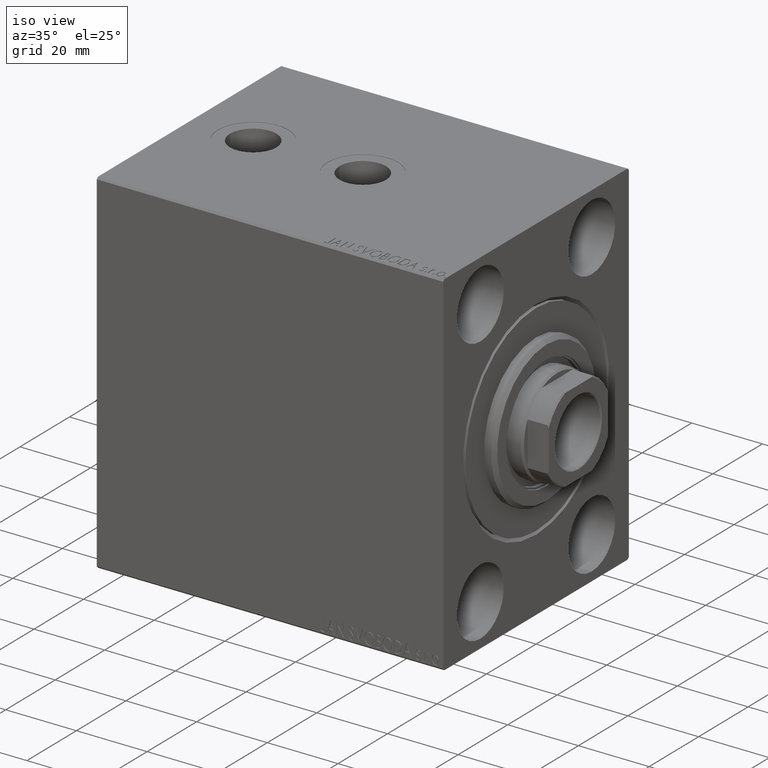
[diagram: clean part render]
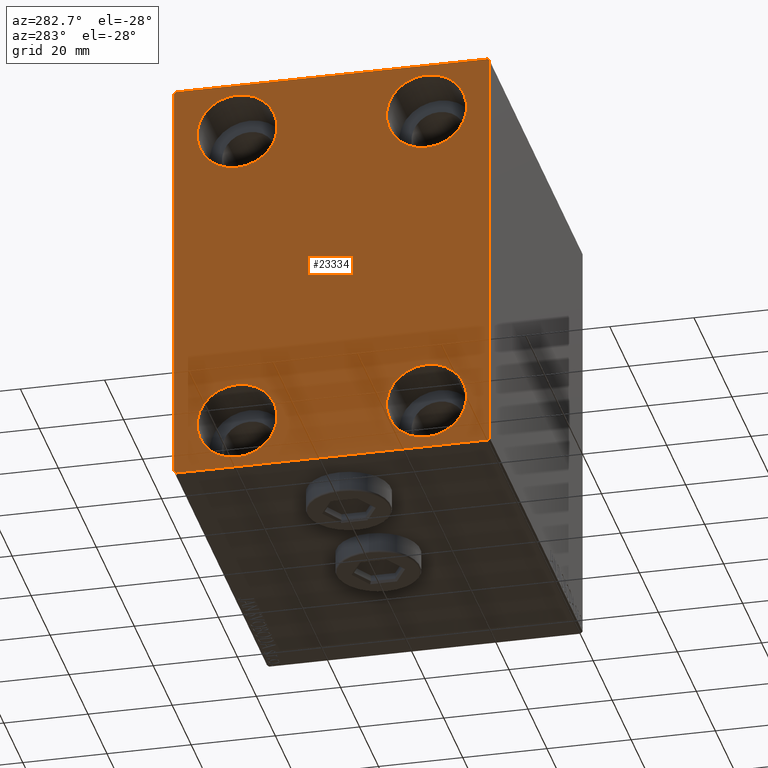
[diagram: tour spotlight — one face highlighted and labeled with its STEP entity id]
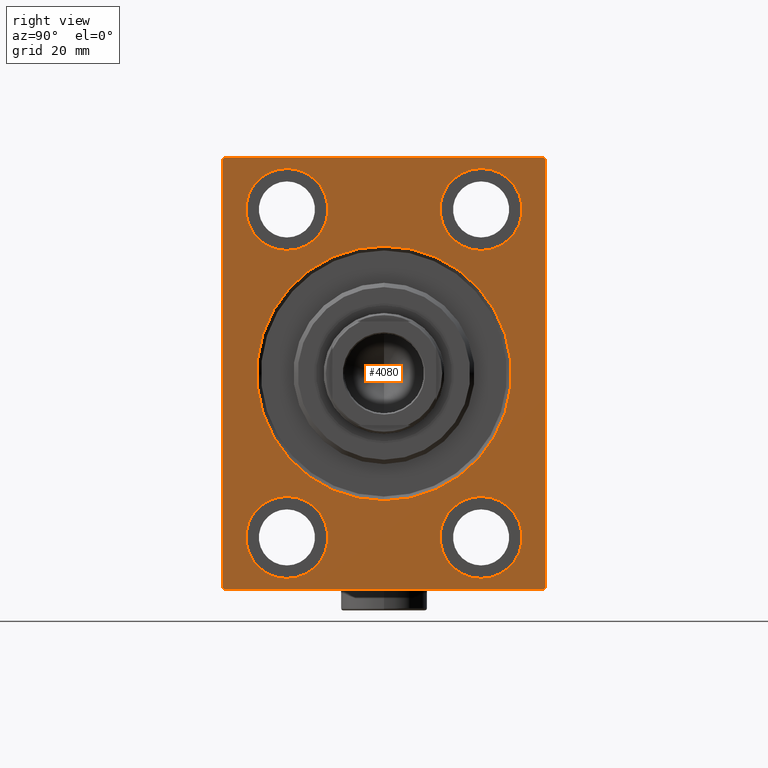
[diagram: tour spotlight — one face highlighted and labeled with its STEP entity id]
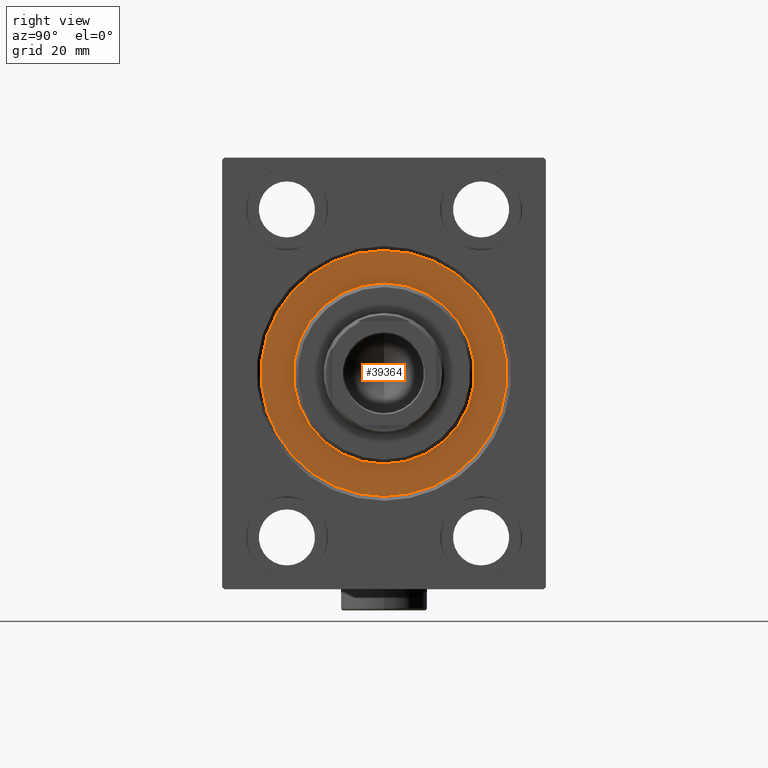
[diagram: tour spotlight — one face highlighted and labeled with its STEP entity id]
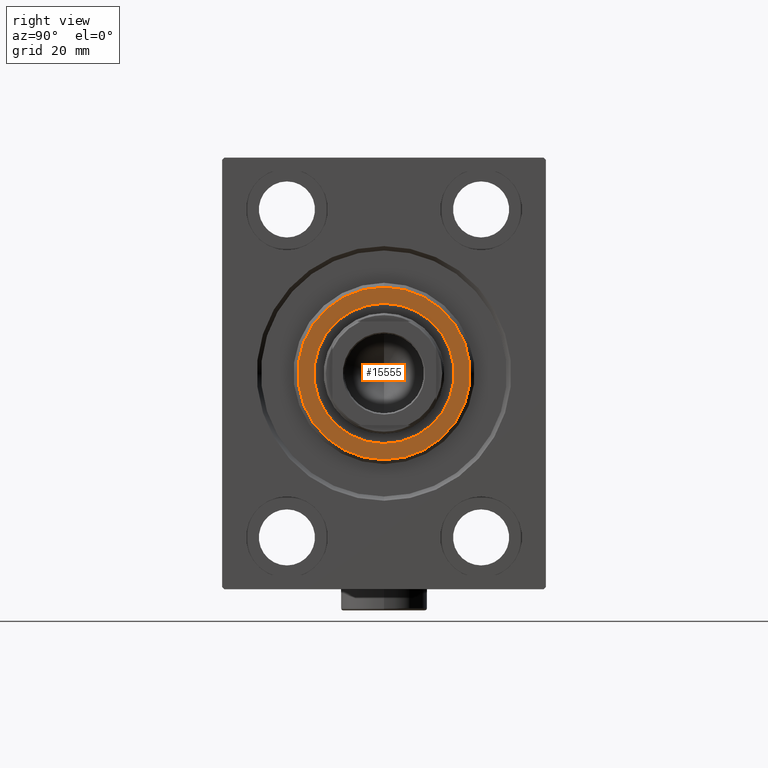
[diagram: tour spotlight — one face highlighted and labeled with its STEP entity id]
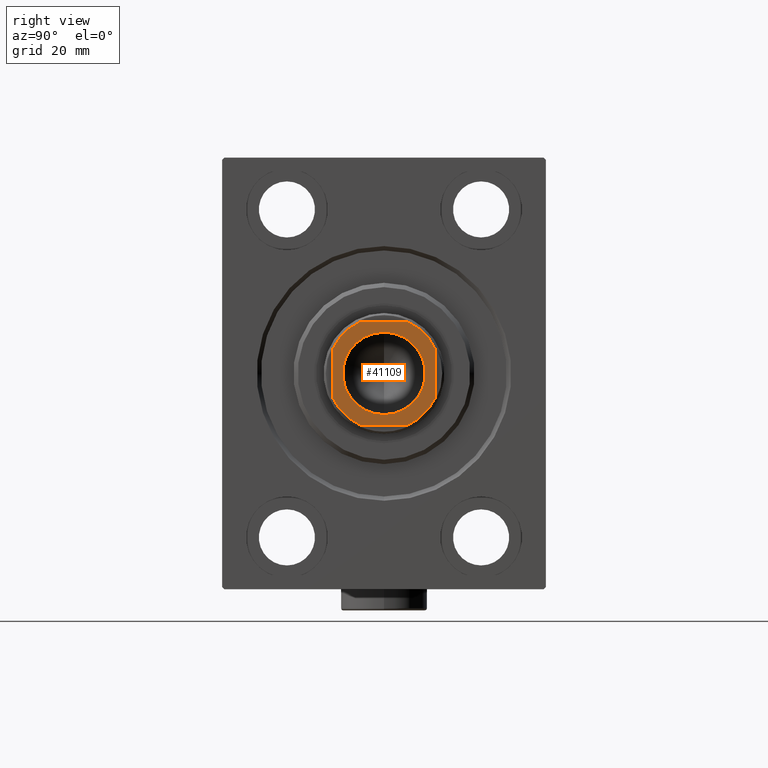
[diagram: tour spotlight — one face highlighted and labeled with its STEP entity id]
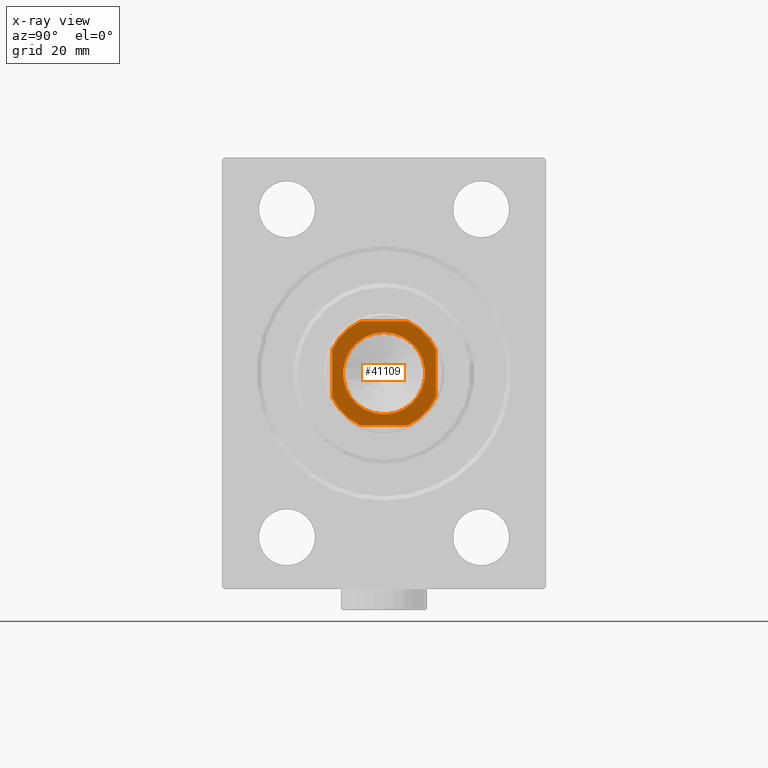
[diagram: x-ray of the same camera — body ghosted, this tour face saturated]
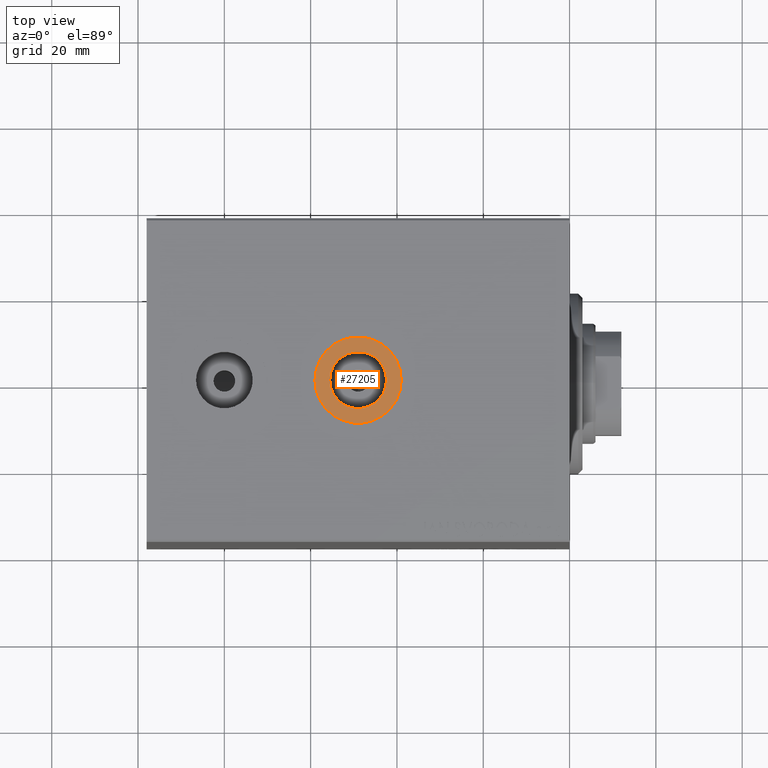
[diagram: tour spotlight — one face highlighted and labeled with its STEP entity id]
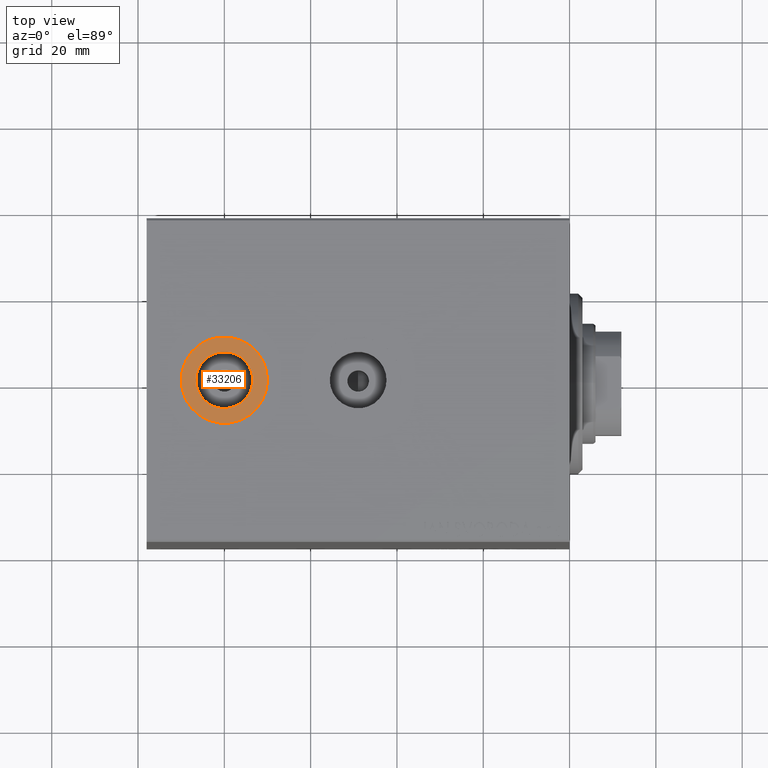
[diagram: tour spotlight — one face highlighted and labeled with its STEP entity id]
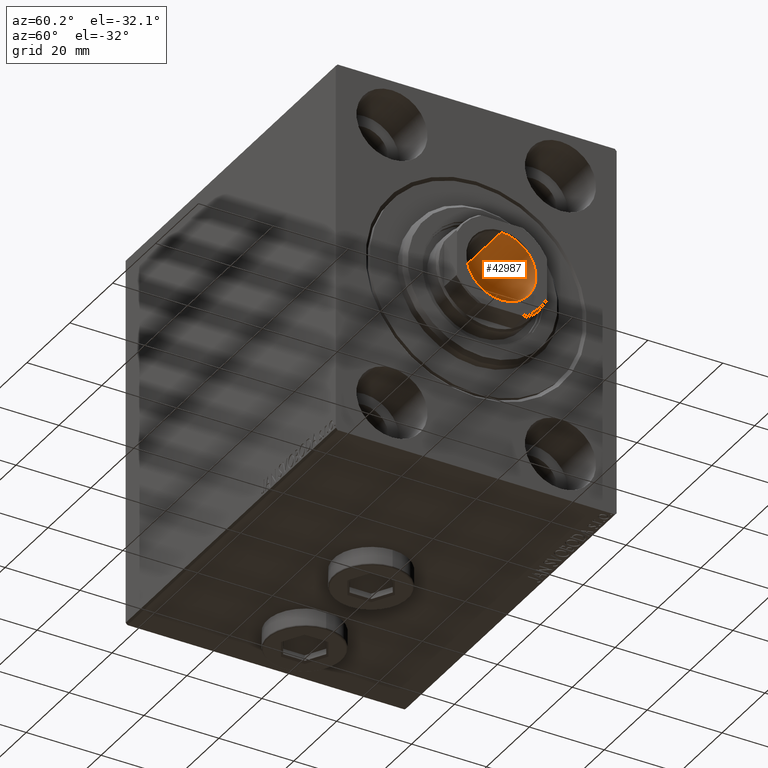
[diagram: tour spotlight — one face highlighted and labeled with its STEP entity id]
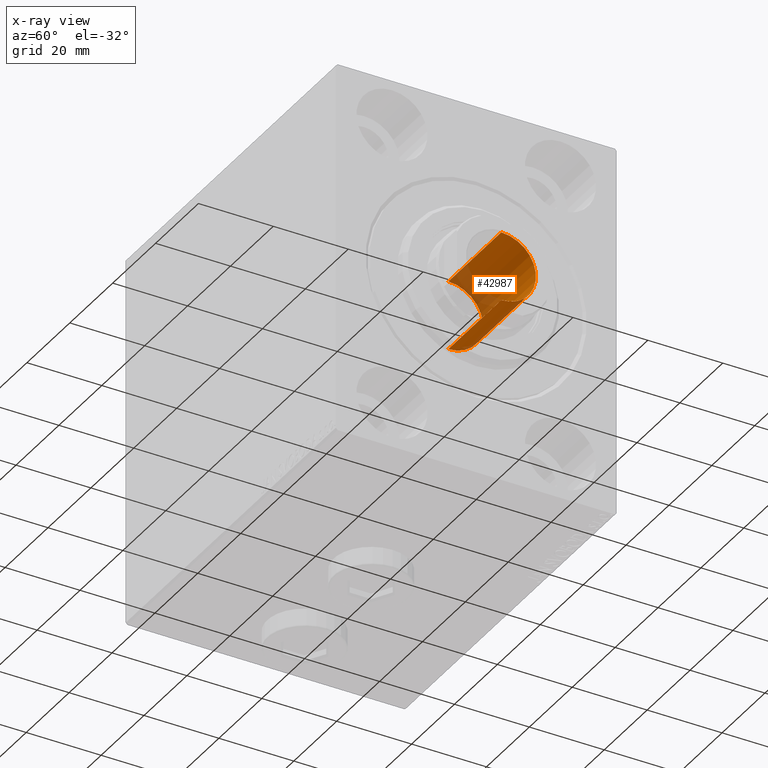
[diagram: x-ray of the same camera — body ghosted, this tour face saturated]
A machine part: a face-by-face anatomy tour. The part has 943 B-rep faces; the first image is the clean iso view, then the 8 largest visible faces are spotlighted one at a time (largest first), each with its STEP entity span.

Face 1 — auxiliary view, entity #23334. In plain terms, the highlighted planar face has unit normal (-1, 0, 0).
Definition (entity closure, byte-faithful):
#23 = ORIENTED_EDGE ( 'NONE', *, *, #11737, .T. ) ;
#111 = EDGE_CURVE ( 'NONE', #3927, #27236, #1813, .T. ) ;
#176 = AXIS2_PLACEMENT_3D ( 'NONE', #16613, #41042, #20323 ) ;
#365 = ORIENTED_EDGE ( 'NONE', *, *, #35045, .T. ) ;
#1111 = DIRECTION ( 'NONE',  ( 0.000000000000000000, 0.000000000000000000, 1.000000000000000000 ) ) ;
#1116 = LINE ( 'NONE', #36886, #4975 ) ;
#1206 = CARTESIAN_POINT ( 'NONE',  ( 98.00000000000000000, 22.49999999999999289, -47.50000000000000000 ) ) ;
#1475 = VERTEX_POINT ( 'NONE', #5110 ) ;
#1813 = CIRCLE ( 'NONE', #12933, 9.500000000000001776 ) ;
#2122 = EDGE_CURVE ( 'NONE', #7694, #11017, #43450, .T. ) ;
#2305 = AXIS2_PLACEMENT_3D ( 'NONE', #15028, #37102, #36872 ) ;
#2398 = CARTESIAN_POINT ( 'NONE',  ( 98.00000000000000000, 0.000000000000000000, 0.000000000000000000 ) ) ;
#3690 = CARTESIAN_POINT ( 'NONE',  ( 98.00000000000000000, -22.50000000000001421, -38.00000000000000000 ) ) ;
#3910 = ORIENTED_EDGE ( 'NONE', *, *, #18425, .T. ) ;
#3927 = VERTEX_POINT ( 'NONE', #9248 ) ;
#4975 = VECTOR ( 'NONE', #15274, 1000.000000000000000 ) ;
#5110 = CARTESIAN_POINT ( 'NONE',  ( 98.00000000000000000, 37.50000000000000000, -49.50000000000000000 ) ) ;
#5314 = CARTESIAN_POINT ( 'NONE',  ( 98.00000000000000000, 22.49999999999999645, 47.49999999999999289 ) ) ;
#5446 = CIRCLE ( 'NONE', #36590, 9.500000000000001776 ) ;
#6010 = LINE ( 'NONE', #20165, #19196 ) ;
#6328 = FACE_BOUND ( 'NONE', #20052, .T. ) ;
#6330 = CARTESIAN_POINT ( 'NONE',  ( 98.00000000000000000, 37.49999999999998579, 49.50000000000000000 ) ) ;
#7691 = CARTESIAN_POINT ( 'NONE',  ( 98.00000000000000000, -37.00000000000000000, 49.99999999999998579 ) ) ;
#7694 = VERTEX_POINT ( 'NONE', #41047 ) ;
#7763 = CARTESIAN_POINT ( 'NONE',  ( 98.00000000000000000, -37.50000000000000000, 49.99999999999998579 ) ) ;
#8669 = LINE ( 'NONE', #22844, #12385 ) ;
#9223 = DIRECTION ( 'NONE',  ( 0.000000000000000000, 0.000000000000000000, 1.000000000000000000 ) ) ;
#9248 = CARTESIAN_POINT ( 'NONE',  ( 98.00000000000000000, 22.49999999999999289, -28.49999999999999645 ) ) ;
#9619 = ORIENTED_EDGE ( 'NONE', *, *, #13072, .T. ) ;
#9662 = EDGE_LOOP ( 'NONE', ( #9973, #29183, #35482, #3910, #14470, #34183, #36710, #23 ) ) ;
#9812 = FACE_BOUND ( 'NONE', #38421, .T. ) ;
#9821 = DIRECTION ( 'NONE',  ( 0.000000000000000000, 0.000000000000000000, 1.000000000000000000 ) ) ;
#9973 = ORIENTED_EDGE ( 'NONE', *, *, #13253, .T. ) ;
#10040 = EDGE_CURVE ( 'NONE', #1475, #31886, #8669, .T. ) ;
#11017 = VERTEX_POINT ( 'NONE', #37647 ) ;
#11433 = CIRCLE ( 'NONE', #33700, 9.500000000000001776 ) ;
#11737 = EDGE_CURVE ( 'NONE', #31886, #38029, #23811, .T. ) ;
#12189 = VERTEX_POINT ( 'NONE', #35995 ) ;
#12247 = AXIS2_PLACEMENT_3D ( 'NONE', #44938, #41685, #9821 ) ;
#12384 = CARTESIAN_POINT ( 'NONE',  ( 98.00000000000000000, -43.49999999999999289, 43.49999999999999289 ) ) ;
#12385 = VECTOR ( 'NONE', #25873, 1000.000000000000000 ) ;
#12933 = AXIS2_PLACEMENT_3D ( 'NONE', #17109, #27580, #9223 ) ;
#13063 = DIRECTION ( 'NONE',  ( 1.000000000000000000, 0.000000000000000000, 0.000000000000000000 ) ) ;
#13066 = VECTOR ( 'NONE', #31022, 1000.000000000000114 ) ;
#13072 = EDGE_CURVE ( 'NONE', #38192, #40151, #23486, .T. ) ;
#13253 = EDGE_CURVE ( 'NONE', #38029, #14747, #1116, .T. ) ;
#13532 = FACE_OUTER_BOUND ( 'NONE', #9662, .T. ) ;
#13577 = CARTESIAN_POINT ( 'NONE',  ( 98.00000000000000000, -22.50000000000001421, -38.00000000000000000 ) ) ;
#13656 = DIRECTION ( 'NONE',  ( 0.000000000000000000, 0.000000000000000000, 1.000000000000000000 ) ) ;
#14470 = ORIENTED_EDGE ( 'NONE', *, *, #22963, .T. ) ;
#14747 = VERTEX_POINT ( 'NONE', #7691 ) ;
#15028 = CARTESIAN_POINT ( 'NONE',  ( 98.00000000000000000, 22.49999999999999645, 37.99999999999999289 ) ) ;
#15274 = DIRECTION ( 'NONE',  ( 0.000000000000000000, -1.000000000000000000, -3.700743415417189125E-16 ) ) ;
#16613 = CARTESIAN_POINT ( 'NONE',  ( 98.00000000000000000, 22.49999999999999645, 37.99999999999999289 ) ) ;
#16829 = DIRECTION ( 'NONE',  ( -1.000000000000000000, -0.000000000000000000, -0.000000000000000000 ) ) ;
#17057 = CARTESIAN_POINT ( 'NONE',  ( 98.00000000000000000, -37.50000000000000000, -50.00000000000001421 ) ) ;
#17109 = CARTESIAN_POINT ( 'NONE',  ( 98.00000000000000000, 22.49999999999999289, -38.00000000000000000 ) ) ;
#17609 = DIRECTION ( 'NONE',  ( 0.000000000000000000, 0.000000000000000000, 1.000000000000000000 ) ) ;
#18000 = LINE ( 'NONE', #7763, #25401 ) ;
#18425 = EDGE_CURVE ( 'NONE', #40843, #41514, #26440, .T. ) ;
#18506 = AXIS2_PLACEMENT_3D ( 'NONE', #37835, #31329, #13656 ) ;
#19196 = VECTOR ( 'NONE', #34354, 1000.000000000000114 ) ;
#20052 = EDGE_LOOP ( 'NONE', ( #31026, #43879 ) ) ;
#20165 = CARTESIAN_POINT ( 'NONE',  ( 98.00000000000000000, 43.50000000000000711, -43.50000000000000711 ) ) ;
#20299 = CARTESIAN_POINT ( 'NONE',  ( 98.00000000000000000, -22.50000000000001421, -47.50000000000000000 ) ) ;
#20323 = DIRECTION ( 'NONE',  ( 0.000000000000000000, 0.000000000000000000, 1.000000000000000000 ) ) ;
#20492 = EDGE_CURVE ( 'NONE', #11017, #7694, #34830, .T. ) ;
#20699 = ORIENTED_EDGE ( 'NONE', *, *, #32599, .T. ) ;
#21610 = CARTESIAN_POINT ( 'NONE',  ( 98.00000000000000000, 36.99999999999997158, 50.00000000000001421 ) ) ;
#22844 = CARTESIAN_POINT ( 'NONE',  ( 98.00000000000000000, 37.50000000000000000, -50.00000000000000000 ) ) ;
#22963 = EDGE_CURVE ( 'NONE', #41514, #39929, #38213, .T. ) ;
#23049 = VERTEX_POINT ( 'NONE', #32387 ) ;
#23334 = ADVANCED_FACE ( 'NONE', ( #9812, #6328, #30736, #31430, #13532 ), #38392, .T. ) ;
#23486 = CIRCLE ( 'NONE', #33156, 9.500000000000001776 ) ;
#23811 = LINE ( 'NONE', #37990, #13066 ) ;
#24675 = CIRCLE ( 'NONE', #176, 9.500000000000001776 ) ;
#24864 = EDGE_CURVE ( 'NONE', #40839, #23049, #42391, .T. ) ;
#25401 = VECTOR ( 'NONE', #42429, 1000.000000000000000 ) ;
#25689 = CARTESIAN_POINT ( 'NONE',  ( 98.00000000000000000, 37.00000000000000000, -50.00000000000000000 ) ) ;
#25873 = DIRECTION ( 'NONE',  ( 0.000000000000000000, -1.387778780781445429E-16, 1.000000000000000000 ) ) ;
#26057 = VECTOR ( 'NONE', #37023, 1000.000000000000114 ) ;
#26173 = EDGE_CURVE ( 'NONE', #14747, #12189, #40517, .T. ) ;
#26440 = LINE ( 'NONE', #43909, #37001 ) ;
#27236 = VERTEX_POINT ( 'NONE', #1206 ) ;
#27580 = DIRECTION ( 'NONE',  ( -1.000000000000000000, -0.000000000000000000, -0.000000000000000000 ) ) ;
#27758 = DIRECTION ( 'NONE',  ( 0.000000000000000000, 1.000000000000000000, 1.850371707708594316E-16 ) ) ;
#29183 = ORIENTED_EDGE ( 'NONE', *, *, #26173, .T. ) ;
#29482 = DIRECTION ( 'NONE',  ( -0.000000000000000000, 0.7071067811865474617, -0.7071067811865474617 ) ) ;
#30736 = FACE_BOUND ( 'NONE', #31161, .T. ) ;
#31022 = DIRECTION ( 'NONE',  ( -0.000000000000000000, -0.7071067811865474617, 0.7071067811865474617 ) ) ;
#31026 = ORIENTED_EDGE ( 'NONE', *, *, #20492, .T. ) ;
#31161 = EDGE_LOOP ( 'NONE', ( #20699, #32424 ) ) ;
#31329 = DIRECTION ( 'NONE',  ( -1.000000000000000000, -0.000000000000000000, -0.000000000000000000 ) ) ;
#31430 = FACE_BOUND ( 'NONE', #42222, .T. ) ;
#31886 = VERTEX_POINT ( 'NONE', #6330 ) ;
#32387 = CARTESIAN_POINT ( 'NONE',  ( 98.00000000000000000, 22.49999999999999645, 28.49999999999998934 ) ) ;
#32424 = ORIENTED_EDGE ( 'NONE', *, *, #24864, .T. ) ;
#32599 = EDGE_CURVE ( 'NONE', #23049, #40839, #24675, .T. ) ;
#32704 = CARTESIAN_POINT ( 'NONE',  ( 98.00000000000000000, 22.49999999999999289, -38.00000000000000000 ) ) ;
#32769 = EDGE_CURVE ( 'NONE', #12189, #40843, #18000, .T. ) ;
#33156 = AXIS2_PLACEMENT_3D ( 'NONE', #3690, #45531, #17609 ) ;
#33646 = CARTESIAN_POINT ( 'NONE',  ( 98.00000000000000000, -37.50000000000000000, -49.50000000000001421 ) ) ;
#33700 = AXIS2_PLACEMENT_3D ( 'NONE', #32704, #38348, #1111 ) ;
#34183 = ORIENTED_EDGE ( 'NONE', *, *, #45331, .T. ) ;
#34354 = DIRECTION ( 'NONE',  ( -0.000000000000000000, 0.7071067811865474617, 0.7071067811865474617 ) ) ;
#34830 = CIRCLE ( 'NONE', #18506, 9.500000000000001776 ) ;
#35045 = EDGE_CURVE ( 'NONE', #40151, #38192, #5446, .T. ) ;
#35482 = ORIENTED_EDGE ( 'NONE', *, *, #32769, .T. ) ;
#35621 = VECTOR ( 'NONE', #27758, 1000.000000000000000 ) ;
#35995 = CARTESIAN_POINT ( 'NONE',  ( 98.00000000000000000, -37.50000000000000000, 49.49999999999998579 ) ) ;
#36590 = AXIS2_PLACEMENT_3D ( 'NONE', #13577, #16829, #41246 ) ;
#36710 = ORIENTED_EDGE ( 'NONE', *, *, #10040, .T. ) ;
#36872 = DIRECTION ( 'NONE',  ( 0.000000000000000000, 0.000000000000000000, 1.000000000000000000 ) ) ;
#36886 = CARTESIAN_POINT ( 'NONE',  ( 98.00000000000000000, 37.49999999999998579, 50.00000000000001421 ) ) ;
#37001 = VECTOR ( 'NONE', #29482, 1000.000000000000114 ) ;
#37023 = DIRECTION ( 'NONE',  ( 0.000000000000000000, -0.7071067811865474617, -0.7071067811865474617 ) ) ;
#37076 = EDGE_CURVE ( 'NONE', #27236, #3927, #11433, .T. ) ;
#37102 = DIRECTION ( 'NONE',  ( -1.000000000000000000, -0.000000000000000000, -0.000000000000000000 ) ) ;
#37647 = CARTESIAN_POINT ( 'NONE',  ( 98.00000000000000000, -22.50000000000000355, 28.49999999999999645 ) ) ;
#37835 = CARTESIAN_POINT ( 'NONE',  ( 98.00000000000000000, -22.50000000000000355, 38.00000000000000000 ) ) ;
#37990 = CARTESIAN_POINT ( 'NONE',  ( 98.00000000000000000, 43.49999999999998579, 43.49999999999998579 ) ) ;
#38029 = VERTEX_POINT ( 'NONE', #21610 ) ;
#38192 = VERTEX_POINT ( 'NONE', #45308 ) ;
#38213 = LINE ( 'NONE', #17057, #35621 ) ;
#38348 = DIRECTION ( 'NONE',  ( -1.000000000000000000, -0.000000000000000000, -0.000000000000000000 ) ) ;
#38392 = PLANE ( 'NONE',  #38617 ) ;
#38421 = EDGE_LOOP ( 'NONE', ( #365, #9619 ) ) ;
#38617 = AXIS2_PLACEMENT_3D ( 'NONE', #2398, #13063, #45625 ) ;
#39929 = VERTEX_POINT ( 'NONE', #25689 ) ;
#40151 = VERTEX_POINT ( 'NONE', #20299 ) ;
#40517 = LINE ( 'NONE', #12384, #26057 ) ;
#40839 = VERTEX_POINT ( 'NONE', #5314 ) ;
#40843 = VERTEX_POINT ( 'NONE', #33646 ) ;
#41042 = DIRECTION ( 'NONE',  ( -1.000000000000000000, -0.000000000000000000, -0.000000000000000000 ) ) ;
#41047 = CARTESIAN_POINT ( 'NONE',  ( 98.00000000000000000, -22.50000000000000355, 47.50000000000000000 ) ) ;
#41246 = DIRECTION ( 'NONE',  ( 0.000000000000000000, 0.000000000000000000, 1.000000000000000000 ) ) ;
#41514 = VERTEX_POINT ( 'NONE', #41899 ) ;
#41685 = DIRECTION ( 'NONE',  ( -1.000000000000000000, -0.000000000000000000, -0.000000000000000000 ) ) ;
#41899 = CARTESIAN_POINT ( 'NONE',  ( 98.00000000000000000, -37.00000000000000000, -50.00000000000001421 ) ) ;
#42222 = EDGE_LOOP ( 'NONE', ( #45025, #43841 ) ) ;
#42391 = CIRCLE ( 'NONE', #2305, 9.500000000000001776 ) ;
#42429 = DIRECTION ( 'NONE',  ( 0.000000000000000000, 0.000000000000000000, -1.000000000000000000 ) ) ;
#43450 = CIRCLE ( 'NONE', #12247, 9.500000000000001776 ) ;
#43841 = ORIENTED_EDGE ( 'NONE', *, *, #111, .T. ) ;
#43879 = ORIENTED_EDGE ( 'NONE', *, *, #2122, .T. ) ;
#43909 = CARTESIAN_POINT ( 'NONE',  ( 98.00000000000000000, -43.50000000000000711, -43.50000000000000711 ) ) ;
#44938 = CARTESIAN_POINT ( 'NONE',  ( 98.00000000000000000, -22.50000000000000355, 38.00000000000000000 ) ) ;
#45025 = ORIENTED_EDGE ( 'NONE', *, *, #37076, .T. ) ;
#45308 = CARTESIAN_POINT ( 'NONE',  ( 98.00000000000000000, -22.50000000000001421, -28.49999999999999645 ) ) ;
#45331 = EDGE_CURVE ( 'NONE', #39929, #1475, #6010, .T. ) ;
#45531 = DIRECTION ( 'NONE',  ( -1.000000000000000000, -0.000000000000000000, -0.000000000000000000 ) ) ;
#45625 = DIRECTION ( 'NONE',  ( 0.000000000000000000, 0.000000000000000000, -1.000000000000000000 ) ) ;

Face 2 — right view, entity #4080. In plain terms, the highlighted planar face has unit normal (-1, 0, 0).
Definition (entity closure, byte-faithful):
#303 = DIRECTION ( 'NONE',  ( 0.000000000000000000, 0.000000000000000000, -1.000000000000000000 ) ) ;
#401 = DIRECTION ( 'NONE',  ( 1.000000000000000000, 0.000000000000000000, 0.000000000000000000 ) ) ;
#431 = EDGE_CURVE ( 'NONE', #32484, #35902, #18721, .T. ) ;
#653 = AXIS2_PLACEMENT_3D ( 'NONE', #32234, #401, #25485 ) ;
#749 = VERTEX_POINT ( 'NONE', #28907 ) ;
#995 = CARTESIAN_POINT ( 'NONE',  ( 0.000000000000000000, 22.49999999999999289, -28.49999999999999645 ) ) ;
#1075 = DIRECTION ( 'NONE',  ( -0.000000000000000000, 0.7071067811865474617, 0.7071067811865474617 ) ) ;
#1468 = DIRECTION ( 'NONE',  ( 0.000000000000000000, 1.000000000000000000, 1.850371707708594316E-16 ) ) ;
#2204 = EDGE_LOOP ( 'NONE', ( #45599, #3819 ) ) ;
#2538 = VERTEX_POINT ( 'NONE', #29277 ) ;
#2668 = CARTESIAN_POINT ( 'NONE',  ( 0.000000000000000000, 22.49999999999999645, 37.99999999999999289 ) ) ;
#2819 = VERTEX_POINT ( 'NONE', #8475 ) ;
#3788 = EDGE_CURVE ( 'NONE', #20930, #2819, #36659, .T. ) ;
#3819 = ORIENTED_EDGE ( 'NONE', *, *, #3788, .F. ) ;
#4080 = ADVANCED_FACE ( 'NONE', ( #31322, #16906, #38059, #45289, #6224, #9706 ), #34800, .F. ) ;
#4527 = AXIS2_PLACEMENT_3D ( 'NONE', #28805, #18102, #20902 ) ;
#4720 = CARTESIAN_POINT ( 'NONE',  ( 0.000000000000000000, 37.49999999999998579, 50.00000000000001421 ) ) ;
#5103 = DIRECTION ( 'NONE',  ( 0.000000000000000000, 0.000000000000000000, 1.000000000000000000 ) ) ;
#5232 = CARTESIAN_POINT ( 'NONE',  ( 0.000000000000000000, 36.99999999999997158, 50.00000000000001421 ) ) ;
#5261 = CIRCLE ( 'NONE', #31214, 9.500000000000001776 ) ;
#5396 = VERTEX_POINT ( 'NONE', #5232 ) ;
#5515 = EDGE_CURVE ( 'NONE', #32484, #17845, #32137, .T. ) ;
#6192 = CARTESIAN_POINT ( 'NONE',  ( 0.000000000000000000, -37.00000000000000000, -50.00000000000001421 ) ) ;
#6224 = FACE_BOUND ( 'NONE', #10817, .T. ) ;
#6295 = ORIENTED_EDGE ( 'NONE', *, *, #45736, .F. ) ;
#6375 = DIRECTION ( 'NONE',  ( -1.000000000000000000, 0.000000000000000000, 0.000000000000000000 ) ) ;
#6488 = CARTESIAN_POINT ( 'NONE',  ( 0.000000000000000000, 0.000000000000000000, 29.50000000000001421 ) ) ;
#6512 = DIRECTION ( 'NONE',  ( 0.000000000000000000, 0.000000000000000000, 1.000000000000000000 ) ) ;
#7140 = AXIS2_PLACEMENT_3D ( 'NONE', #30078, #12408, #44268 ) ;
#7470 = CARTESIAN_POINT ( 'NONE',  ( 0.000000000000000000, -22.50000000000000355, 28.49999999999999645 ) ) ;
#7711 = CARTESIAN_POINT ( 'NONE',  ( 0.000000000000000000, 0.000000000000000000, 0.000000000000000000 ) ) ;
#7965 = EDGE_CURVE ( 'NONE', #29872, #8312, #22731, .T. ) ;
#8029 = LINE ( 'NONE', #26383, #16094 ) ;
#8259 = AXIS2_PLACEMENT_3D ( 'NONE', #29954, #36917, #5103 ) ;
#8292 = EDGE_CURVE ( 'NONE', #5396, #35902, #30028, .T. ) ;
#8312 = VERTEX_POINT ( 'NONE', #995 ) ;
#8475 = CARTESIAN_POINT ( 'NONE',  ( 0.000000000000000000, -22.50000000000001421, -28.49999999999999645 ) ) ;
#8494 = DIRECTION ( 'NONE',  ( 0.000000000000000000, -0.7071067811865474617, -0.7071067811865474617 ) ) ;
#9386 = ORIENTED_EDGE ( 'NONE', *, *, #36603, .T. ) ;
#9561 = ORIENTED_EDGE ( 'NONE', *, *, #23706, .F. ) ;
#9562 = EDGE_CURVE ( 'NONE', #23991, #749, #8029, .T. ) ;
#9706 = FACE_OUTER_BOUND ( 'NONE', #25690, .T. ) ;
#9763 = CARTESIAN_POINT ( 'NONE',  ( 0.000000000000000000, -22.50000000000001421, -38.00000000000000000 ) ) ;
#10817 = EDGE_LOOP ( 'NONE', ( #18188, #16974 ) ) ;
#11654 = DIRECTION ( 'NONE',  ( -0.000000000000000000, -0.7071067811865474617, 0.7071067811865474617 ) ) ;
#11895 = LINE ( 'NONE', #36981, #18346 ) ;
#11913 = LINE ( 'NONE', #36772, #21806 ) ;
#12367 = ORIENTED_EDGE ( 'NONE', *, *, #9562, .T. ) ;
#12408 = DIRECTION ( 'NONE',  ( -1.000000000000000000, 0.000000000000000000, 0.000000000000000000 ) ) ;
#12452 = ORIENTED_EDGE ( 'NONE', *, *, #37806, .F. ) ;
#12494 = DIRECTION ( 'NONE',  ( -1.000000000000000000, 0.000000000000000000, 0.000000000000000000 ) ) ;
#12717 = CARTESIAN_POINT ( 'NONE',  ( 0.000000000000000000, 22.49999999999999289, -38.00000000000000000 ) ) ;
#14697 = VERTEX_POINT ( 'NONE', #7470 ) ;
#15461 = EDGE_LOOP ( 'NONE', ( #6295, #9561 ) ) ;
#15701 = CARTESIAN_POINT ( 'NONE',  ( 0.000000000000000000, 3.612708057484693970E-15, -29.50000000000001421 ) ) ;
#15754 = EDGE_CURVE ( 'NONE', #17680, #17845, #11895, .T. ) ;
#16094 = VECTOR ( 'NONE', #8494, 1000.000000000000114 ) ;
#16474 = DIRECTION ( 'NONE',  ( 0.000000000000000000, -1.387778780781445429E-16, 1.000000000000000000 ) ) ;
#16768 = CARTESIAN_POINT ( 'NONE',  ( 0.000000000000000000, 37.49999999999998579, 49.50000000000000000 ) ) ;
#16906 = FACE_BOUND ( 'NONE', #2204, .T. ) ;
#16974 = ORIENTED_EDGE ( 'NONE', *, *, #7965, .F. ) ;
#17680 = VERTEX_POINT ( 'NONE', #6192 ) ;
#17788 = CARTESIAN_POINT ( 'NONE',  ( 0.000000000000000000, -22.50000000000000355, 38.00000000000000000 ) ) ;
#17845 = VERTEX_POINT ( 'NONE', #44464 ) ;
#18102 = DIRECTION ( 'NONE',  ( -1.000000000000000000, 0.000000000000000000, 0.000000000000000000 ) ) ;
#18188 = ORIENTED_EDGE ( 'NONE', *, *, #43112, .F. ) ;
#18346 = VECTOR ( 'NONE', #11654, 1000.000000000000114 ) ;
#18721 = LINE ( 'NONE', #33586, #30037 ) ;
#19012 = DIRECTION ( 'NONE',  ( 0.000000000000000000, 0.000000000000000000, 1.000000000000000000 ) ) ;
#19634 = ORIENTED_EDGE ( 'NONE', *, *, #39270, .F. ) ;
#19865 = CIRCLE ( 'NONE', #37700, 9.500000000000001776 ) ;
#20212 = CARTESIAN_POINT ( 'NONE',  ( 0.000000000000000000, 22.49999999999999645, 47.49999999999999289 ) ) ;
#20902 = DIRECTION ( 'NONE',  ( 0.000000000000000000, 0.000000000000000000, 1.000000000000000000 ) ) ;
#20905 = EDGE_CURVE ( 'NONE', #33732, #26602, #27407, .T. ) ;
#20930 = VERTEX_POINT ( 'NONE', #36290 ) ;
#21073 = DIRECTION ( 'NONE',  ( 0.000000000000000000, 0.000000000000000000, -1.000000000000000000 ) ) ;
#21175 = CARTESIAN_POINT ( 'NONE',  ( 0.000000000000000000, 22.49999999999999645, 28.49999999999998934 ) ) ;
#21257 = ORIENTED_EDGE ( 'NONE', *, *, #28207, .F. ) ;
#21348 = ORIENTED_EDGE ( 'NONE', *, *, #20905, .T. ) ;
#21806 = VECTOR ( 'NONE', #1468, 1000.000000000000000 ) ;
#21812 = AXIS2_PLACEMENT_3D ( 'NONE', #9763, #34621, #6512 ) ;
#21923 = CARTESIAN_POINT ( 'NONE',  ( 0.000000000000000000, 37.50000000000000000, -49.50000000000000000 ) ) ;
#22412 = CARTESIAN_POINT ( 'NONE',  ( 0.000000000000000000, 36.99999999999997158, 50.00000000000001421 ) ) ;
#22706 = VERTEX_POINT ( 'NONE', #21175 ) ;
#22731 = CIRCLE ( 'NONE', #7140, 9.500000000000001776 ) ;
#22750 = VECTOR ( 'NONE', #16474, 1000.000000000000000 ) ;
#23505 = DIRECTION ( 'NONE',  ( -1.000000000000000000, 0.000000000000000000, 0.000000000000000000 ) ) ;
#23706 = EDGE_CURVE ( 'NONE', #14697, #2538, #43117, .T. ) ;
#23783 = EDGE_LOOP ( 'NONE', ( #21257, #38708 ) ) ;
#23991 = VERTEX_POINT ( 'NONE', #21923 ) ;
#24422 = VERTEX_POINT ( 'NONE', #20212 ) ;
#24793 = DIRECTION ( 'NONE',  ( 1.000000000000000000, 0.000000000000000000, 0.000000000000000000 ) ) ;
#25485 = DIRECTION ( 'NONE',  ( 0.000000000000000000, 0.000000000000000000, -1.000000000000000000 ) ) ;
#25690 = EDGE_LOOP ( 'NONE', ( #38662, #36115, #27382, #9386, #19634, #12367, #12452, #27512 ) ) ;
#26284 = AXIS2_PLACEMENT_3D ( 'NONE', #38972, #24793, #21073 ) ;
#26358 = DIRECTION ( 'NONE',  ( -0.000000000000000000, 0.7071067811865474617, -0.7071067811865474617 ) ) ;
#26383 = CARTESIAN_POINT ( 'NONE',  ( 0.000000000000000000, 37.50000000000000000, -49.50000000000000000 ) ) ;
#26602 = VERTEX_POINT ( 'NONE', #15701 ) ;
#27382 = ORIENTED_EDGE ( 'NONE', *, *, #8292, .F. ) ;
#27407 = CIRCLE ( 'NONE', #39288, 29.50000000000001421 ) ;
#27512 = ORIENTED_EDGE ( 'NONE', *, *, #15754, .T. ) ;
#28207 = EDGE_CURVE ( 'NONE', #24422, #22706, #5261, .T. ) ;
#28307 = CIRCLE ( 'NONE', #8259, 9.500000000000001776 ) ;
#28805 = CARTESIAN_POINT ( 'NONE',  ( 0.000000000000000000, -22.50000000000000355, 38.00000000000000000 ) ) ;
#28907 = CARTESIAN_POINT ( 'NONE',  ( 0.000000000000000000, 37.00000000000000000, -50.00000000000000000 ) ) ;
#29168 = DIRECTION ( 'NONE',  ( 0.000000000000000000, 0.000000000000000000, 1.000000000000000000 ) ) ;
#29277 = CARTESIAN_POINT ( 'NONE',  ( 0.000000000000000000, -22.50000000000000355, 47.50000000000000000 ) ) ;
#29345 = CARTESIAN_POINT ( 'NONE',  ( 0.000000000000000000, -37.50000000000000000, 49.99999999999998579 ) ) ;
#29535 = LINE ( 'NONE', #43962, #22750 ) ;
#29872 = VERTEX_POINT ( 'NONE', #39879 ) ;
#29954 = CARTESIAN_POINT ( 'NONE',  ( 0.000000000000000000, -22.50000000000001421, -38.00000000000000000 ) ) ;
#30028 = LINE ( 'NONE', #4720, #30169 ) ;
#30037 = VECTOR ( 'NONE', #1075, 1000.000000000000114 ) ;
#30078 = CARTESIAN_POINT ( 'NONE',  ( 0.000000000000000000, 22.49999999999999289, -38.00000000000000000 ) ) ;
#30169 = VECTOR ( 'NONE', #36995, 1000.000000000000000 ) ;
#30427 = EDGE_CURVE ( 'NONE', #2819, #20930, #28307, .T. ) ;
#30636 = CARTESIAN_POINT ( 'NONE',  ( 0.000000000000000000, -37.50000000000000000, 49.49999999999998579 ) ) ;
#31214 = AXIS2_PLACEMENT_3D ( 'NONE', #41184, #23505, #37687 ) ;
#31322 = FACE_BOUND ( 'NONE', #39517, .T. ) ;
#32137 = LINE ( 'NONE', #29345, #36060 ) ;
#32234 = CARTESIAN_POINT ( 'NONE',  ( 0.000000000000000000, 0.000000000000000000, 0.000000000000000000 ) ) ;
#32484 = VERTEX_POINT ( 'NONE', #30636 ) ;
#32644 = DIRECTION ( 'NONE',  ( -1.000000000000000000, 0.000000000000000000, 0.000000000000000000 ) ) ;
#33586 = CARTESIAN_POINT ( 'NONE',  ( 0.000000000000000000, -37.50000000000000000, 49.49999999999998579 ) ) ;
#33732 = VERTEX_POINT ( 'NONE', #6488 ) ;
#34033 = DIRECTION ( 'NONE',  ( 0.000000000000000000, 0.000000000000000000, 1.000000000000000000 ) ) ;
#34206 = VERTEX_POINT ( 'NONE', #16768 ) ;
#34621 = DIRECTION ( 'NONE',  ( -1.000000000000000000, 0.000000000000000000, 0.000000000000000000 ) ) ;
#34775 = CIRCLE ( 'NONE', #653, 29.50000000000001421 ) ;
#34800 = PLANE ( 'NONE',  #26284 ) ;
#35202 = DIRECTION ( 'NONE',  ( 1.000000000000000000, 0.000000000000000000, 0.000000000000000000 ) ) ;
#35902 = VERTEX_POINT ( 'NONE', #37454 ) ;
#36060 = VECTOR ( 'NONE', #303, 1000.000000000000000 ) ;
#36115 = ORIENTED_EDGE ( 'NONE', *, *, #431, .T. ) ;
#36290 = CARTESIAN_POINT ( 'NONE',  ( 0.000000000000000000, -22.50000000000001421, -47.50000000000000000 ) ) ;
#36603 = EDGE_CURVE ( 'NONE', #5396, #34206, #36814, .T. ) ;
#36659 = CIRCLE ( 'NONE', #21812, 9.500000000000001776 ) ;
#36772 = CARTESIAN_POINT ( 'NONE',  ( 0.000000000000000000, -37.50000000000000000, -50.00000000000001421 ) ) ;
#36814 = LINE ( 'NONE', #22412, #38107 ) ;
#36917 = DIRECTION ( 'NONE',  ( -1.000000000000000000, 0.000000000000000000, 0.000000000000000000 ) ) ;
#36981 = CARTESIAN_POINT ( 'NONE',  ( 0.000000000000000000, -37.00000000000000000, -50.00000000000001421 ) ) ;
#36995 = DIRECTION ( 'NONE',  ( 0.000000000000000000, -1.000000000000000000, -3.700743415417189125E-16 ) ) ;
#37004 = ORIENTED_EDGE ( 'NONE', *, *, #44642, .T. ) ;
#37454 = CARTESIAN_POINT ( 'NONE',  ( 0.000000000000000000, -37.00000000000000000, 49.99999999999998579 ) ) ;
#37687 = DIRECTION ( 'NONE',  ( 0.000000000000000000, 0.000000000000000000, 1.000000000000000000 ) ) ;
#37700 = AXIS2_PLACEMENT_3D ( 'NONE', #2668, #6375, #34033 ) ;
#37757 = CIRCLE ( 'NONE', #45996, 9.500000000000001776 ) ;
#37806 = EDGE_CURVE ( 'NONE', #17680, #749, #11913, .T. ) ;
#38059 = FACE_BOUND ( 'NONE', #15461, .T. ) ;
#38107 = VECTOR ( 'NONE', #26358, 1000.000000000000114 ) ;
#38662 = ORIENTED_EDGE ( 'NONE', *, *, #5515, .F. ) ;
#38708 = ORIENTED_EDGE ( 'NONE', *, *, #43512, .F. ) ;
#38972 = CARTESIAN_POINT ( 'NONE',  ( 0.000000000000000000, 0.000000000000000000, 0.000000000000000000 ) ) ;
#39270 = EDGE_CURVE ( 'NONE', #23991, #34206, #29535, .T. ) ;
#39288 = AXIS2_PLACEMENT_3D ( 'NONE', #7711, #35202, #39556 ) ;
#39517 = EDGE_LOOP ( 'NONE', ( #21348, #37004 ) ) ;
#39556 = DIRECTION ( 'NONE',  ( 0.000000000000000000, 0.000000000000000000, -1.000000000000000000 ) ) ;
#39879 = CARTESIAN_POINT ( 'NONE',  ( 0.000000000000000000, 22.49999999999999289, -47.50000000000000000 ) ) ;
#41184 = CARTESIAN_POINT ( 'NONE',  ( 0.000000000000000000, 22.49999999999999645, 37.99999999999999289 ) ) ;
#41431 = CIRCLE ( 'NONE', #45160, 9.500000000000001776 ) ;
#43112 = EDGE_CURVE ( 'NONE', #8312, #29872, #41431, .T. ) ;
#43117 = CIRCLE ( 'NONE', #4527, 9.500000000000001776 ) ;
#43512 = EDGE_CURVE ( 'NONE', #22706, #24422, #19865, .T. ) ;
#43962 = CARTESIAN_POINT ( 'NONE',  ( 0.000000000000000000, 37.50000000000000000, -50.00000000000000000 ) ) ;
#44268 = DIRECTION ( 'NONE',  ( 0.000000000000000000, 0.000000000000000000, 1.000000000000000000 ) ) ;
#44464 = CARTESIAN_POINT ( 'NONE',  ( 0.000000000000000000, -37.50000000000000000, -49.50000000000001421 ) ) ;
#44642 = EDGE_CURVE ( 'NONE', #26602, #33732, #34775, .T. ) ;
#45160 = AXIS2_PLACEMENT_3D ( 'NONE', #12717, #12494, #19012 ) ;
#45289 = FACE_BOUND ( 'NONE', #23783, .T. ) ;
#45599 = ORIENTED_EDGE ( 'NONE', *, *, #30427, .F. ) ;
#45736 = EDGE_CURVE ( 'NONE', #2538, #14697, #37757, .T. ) ;
#45996 = AXIS2_PLACEMENT_3D ( 'NONE', #17788, #32644, #29168 ) ;

Face 3 — right view, entity #39364. In plain terms, the highlighted planar face has unit normal (-1, 0, 0).
Definition (entity closure, byte-faithful):
#422 = EDGE_CURVE ( 'NONE', #36304, #35581, #14437, .T. ) ;
#828 = ORIENTED_EDGE ( 'NONE', *, *, #3259, .F. ) ;
#1115 = AXIS2_PLACEMENT_3D ( 'NONE', #4565, #4800, #18953 ) ;
#2093 = DIRECTION ( 'NONE',  ( 0.000000000000000000, 0.000000000000000000, 1.000000000000000000 ) ) ;
#2287 = EDGE_CURVE ( 'NONE', #35581, #36304, #35973, .T. ) ;
#3259 = EDGE_CURVE ( 'NONE', #25804, #6849, #41879, .T. ) ;
#4565 = CARTESIAN_POINT ( 'NONE',  ( 0.000000000000000000, 0.000000000000000000, 0.000000000000000000 ) ) ;
#4800 = DIRECTION ( 'NONE',  ( -1.000000000000000000, 0.000000000000000000, 0.000000000000000000 ) ) ;
#5362 = CARTESIAN_POINT ( 'NONE',  ( 0.000000000000000000, 0.000000000000000000, 0.000000000000000000 ) ) ;
#6162 = CARTESIAN_POINT ( 'NONE',  ( 0.000000000000000000, 2.571758278209441661E-15, -21.00000000000000000 ) ) ;
#6849 = VERTEX_POINT ( 'NONE', #6162 ) ;
#8832 = PLANE ( 'NONE',  #25735 ) ;
#9790 = ORIENTED_EDGE ( 'NONE', *, *, #422, .F. ) ;
#9943 = AXIS2_PLACEMENT_3D ( 'NONE', #30931, #38353, #13495 ) ;
#11977 = CIRCLE ( 'NONE', #21617, 21.00000000000000000 ) ;
#13495 = DIRECTION ( 'NONE',  ( 0.000000000000000000, 0.000000000000000000, -1.000000000000000000 ) ) ;
#14347 = CARTESIAN_POINT ( 'NONE',  ( 0.000000000000000000, 0.000000000000000000, -28.50000000000000000 ) ) ;
#14437 = CIRCLE ( 'NONE', #1115, 28.50000000000000000 ) ;
#17099 = ORIENTED_EDGE ( 'NONE', *, *, #2287, .F. ) ;
#17477 = DIRECTION ( 'NONE',  ( -1.000000000000000000, 0.000000000000000000, 0.000000000000000000 ) ) ;
#18953 = DIRECTION ( 'NONE',  ( 0.000000000000000000, 0.000000000000000000, 1.000000000000000000 ) ) ;
#21062 = CARTESIAN_POINT ( 'NONE',  ( 0.000000000000000000, 3.490243377569956456E-15, 28.50000000000000000 ) ) ;
#21617 = AXIS2_PLACEMENT_3D ( 'NONE', #38049, #41319, #41092 ) ;
#23356 = EDGE_LOOP ( 'NONE', ( #9790, #17099 ) ) ;
#24107 = AXIS2_PLACEMENT_3D ( 'NONE', #25147, #17477, #35825 ) ;
#25147 = CARTESIAN_POINT ( 'NONE',  ( 0.000000000000000000, 0.000000000000000000, 0.000000000000000000 ) ) ;
#25735 = AXIS2_PLACEMENT_3D ( 'NONE', #5362, #33692, #2093 ) ;
#25804 = VERTEX_POINT ( 'NONE', #33135 ) ;
#30481 = EDGE_CURVE ( 'NONE', #6849, #25804, #11977, .T. ) ;
#30931 = CARTESIAN_POINT ( 'NONE',  ( 0.000000000000000000, 0.000000000000000000, 0.000000000000000000 ) ) ;
#33135 = CARTESIAN_POINT ( 'NONE',  ( 0.000000000000000000, 0.000000000000000000, 21.00000000000000000 ) ) ;
#33692 = DIRECTION ( 'NONE',  ( -1.000000000000000000, 0.000000000000000000, 0.000000000000000000 ) ) ;
#33914 = FACE_BOUND ( 'NONE', #39121, .T. ) ;
#35581 = VERTEX_POINT ( 'NONE', #21062 ) ;
#35825 = DIRECTION ( 'NONE',  ( 0.000000000000000000, 0.000000000000000000, 1.000000000000000000 ) ) ;
#35972 = ORIENTED_EDGE ( 'NONE', *, *, #30481, .F. ) ;
#35973 = CIRCLE ( 'NONE', #24107, 28.50000000000000000 ) ;
#36304 = VERTEX_POINT ( 'NONE', #14347 ) ;
#38049 = CARTESIAN_POINT ( 'NONE',  ( 0.000000000000000000, 0.000000000000000000, 0.000000000000000000 ) ) ;
#38353 = DIRECTION ( 'NONE',  ( 1.000000000000000000, -0.000000000000000000, 0.000000000000000000 ) ) ;
#39121 = EDGE_LOOP ( 'NONE', ( #828, #35972 ) ) ;
#39364 = ADVANCED_FACE ( 'NONE', ( #33914, #40678 ), #8832, .F. ) ;
#40678 = FACE_OUTER_BOUND ( 'NONE', #23356, .T. ) ;
#41092 = DIRECTION ( 'NONE',  ( 0.000000000000000000, 0.000000000000000000, -1.000000000000000000 ) ) ;
#41319 = DIRECTION ( 'NONE',  ( 1.000000000000000000, -0.000000000000000000, 0.000000000000000000 ) ) ;
#41879 = CIRCLE ( 'NONE', #9943, 21.00000000000000000 ) ;

Face 4 — right view, entity #15555. In plain terms, the highlighted planar face has unit normal (1, 0, 0).
Definition (entity closure, byte-faithful):
#1983 = EDGE_CURVE ( 'NONE', #23929, #36996, #33049, .T. ) ;
#2595 = AXIS2_PLACEMENT_3D ( 'NONE', #42428, #10560, #18216 ) ;
#3030 = CARTESIAN_POINT ( 'NONE',  ( 3.000000000000000000, 1.990051048614449313E-15, 16.25000000000000000 ) ) ;
#4380 = ORIENTED_EDGE ( 'NONE', *, *, #37059, .F. ) ;
#7209 = AXIS2_PLACEMENT_3D ( 'NONE', #11044, #20406, #21727 ) ;
#7604 = DIRECTION ( 'NONE',  ( 1.000000000000000000, 0.000000000000000000, 0.000000000000000000 ) ) ;
#9414 = CIRCLE ( 'NONE', #7209, 20.00000000000001776 ) ;
#10560 = DIRECTION ( 'NONE',  ( 1.000000000000000000, -0.000000000000000000, 0.000000000000000000 ) ) ;
#10707 = DIRECTION ( 'NONE',  ( 1.000000000000000000, 0.000000000000000000, 0.000000000000000000 ) ) ;
#10760 = EDGE_LOOP ( 'NONE', ( #4380, #21854 ) ) ;
#11044 = CARTESIAN_POINT ( 'NONE',  ( 3.000000000000000000, 0.000000000000000000, 0.000000000000000000 ) ) ;
#11330 = CIRCLE ( 'NONE', #26931, 16.25000000000000000 ) ;
#12449 = CARTESIAN_POINT ( 'NONE',  ( 3.000000000000000000, 0.000000000000000000, 0.000000000000000000 ) ) ;
#14307 = EDGE_CURVE ( 'NONE', #36996, #23929, #9414, .T. ) ;
#14848 = ORIENTED_EDGE ( 'NONE', *, *, #14307, .T. ) ;
#15555 = ADVANCED_FACE ( 'NONE', ( #40813, #30573 ), #37524, .T. ) ;
#15706 = DIRECTION ( 'NONE',  ( 0.000000000000000000, 0.000000000000000000, -1.000000000000000000 ) ) ;
#18216 = DIRECTION ( 'NONE',  ( 0.000000000000000000, 0.000000000000000000, -1.000000000000000000 ) ) ;
#18287 = CARTESIAN_POINT ( 'NONE',  ( 3.000000000000000000, 0.000000000000000000, 0.000000000000000000 ) ) ;
#20406 = DIRECTION ( 'NONE',  ( 1.000000000000000000, -0.000000000000000000, 0.000000000000000000 ) ) ;
#20836 = CARTESIAN_POINT ( 'NONE',  ( 3.000000000000000000, 0.000000000000000000, -16.25000000000000000 ) ) ;
#21727 = DIRECTION ( 'NONE',  ( 0.000000000000000000, 0.000000000000000000, -1.000000000000000000 ) ) ;
#21770 = DIRECTION ( 'NONE',  ( 0.000000000000000000, 0.000000000000000000, -1.000000000000000000 ) ) ;
#21854 = ORIENTED_EDGE ( 'NONE', *, *, #33550, .F. ) ;
#22060 = AXIS2_PLACEMENT_3D ( 'NONE', #12449, #43866, #15706 ) ;
#22554 = AXIS2_PLACEMENT_3D ( 'NONE', #18287, #7604, #21770 ) ;
#23307 = CIRCLE ( 'NONE', #22554, 16.25000000000000000 ) ;
#23575 = VERTEX_POINT ( 'NONE', #3030 ) ;
#23929 = VERTEX_POINT ( 'NONE', #38054 ) ;
#24597 = EDGE_LOOP ( 'NONE', ( #42972, #14848 ) ) ;
#26931 = AXIS2_PLACEMENT_3D ( 'NONE', #41880, #10707, #27917 ) ;
#27917 = DIRECTION ( 'NONE',  ( 0.000000000000000000, 0.000000000000000000, -1.000000000000000000 ) ) ;
#30573 = FACE_BOUND ( 'NONE', #10760, .T. ) ;
#33049 = CIRCLE ( 'NONE', #2595, 20.00000000000001776 ) ;
#33550 = EDGE_CURVE ( 'NONE', #23575, #44011, #11330, .T. ) ;
#36996 = VERTEX_POINT ( 'NONE', #44443 ) ;
#37059 = EDGE_CURVE ( 'NONE', #44011, #23575, #23307, .T. ) ;
#37524 = PLANE ( 'NONE',  #22060 ) ;
#38054 = CARTESIAN_POINT ( 'NONE',  ( 3.000000000000000000, 0.000000000000000000, 20.00000000000001776 ) ) ;
#40813 = FACE_OUTER_BOUND ( 'NONE', #24597, .T. ) ;
#41880 = CARTESIAN_POINT ( 'NONE',  ( 3.000000000000000000, 0.000000000000000000, 0.000000000000000000 ) ) ;
#42428 = CARTESIAN_POINT ( 'NONE',  ( 3.000000000000000000, 0.000000000000000000, 0.000000000000000000 ) ) ;
#42972 = ORIENTED_EDGE ( 'NONE', *, *, #1983, .T. ) ;
#43866 = DIRECTION ( 'NONE',  ( 1.000000000000000000, -0.000000000000000000, 0.000000000000000000 ) ) ;
#44011 = VERTEX_POINT ( 'NONE', #20836 ) ;
#44443 = CARTESIAN_POINT ( 'NONE',  ( 3.000000000000000000, 2.510525938252075270E-15, -20.00000000000001776 ) ) ;

Face 5 — right view, entity #41109. An x-ray twin of the same camera follows (body ghosted, this face saturated) — the face is partly hidden behind the body. In plain terms, the highlighted planar face has unit normal (1, -0, 0).
Definition (entity closure, byte-faithful):
#277 = CARTESIAN_POINT ( 'NONE',  ( -12.00000000000000000, 5.499090833947022361, 96.00000000000000000 ) ) ;
#1839 = CARTESIAN_POINT ( 'NONE',  ( 5.499090833947020585, -12.00000000000000000, 96.00000000000000000 ) ) ;
#2503 = DIRECTION ( 'NONE',  ( 1.000000000000000000, 0.000000000000000000, 0.000000000000000000 ) ) ;
#2577 = DIRECTION ( 'NONE',  ( 0.000000000000000000, -0.000000000000000000, -1.000000000000000000 ) ) ;
#2767 = DIRECTION ( 'NONE',  ( -1.445602896647339163E-16, 1.000000000000000000, -0.000000000000000000 ) ) ;
#3836 = CIRCLE ( 'NONE', #20888, 9.549999999999988276 ) ;
#3862 = CARTESIAN_POINT ( 'NONE',  ( -5.499090833947052559, -12.00000000000000000, 96.00000000000000000 ) ) ;
#4292 = AXIS2_PLACEMENT_3D ( 'NONE', #44431, #2577, #26743 ) ;
#4874 = DIRECTION ( 'NONE',  ( 1.000000000000000000, 0.000000000000000000, 0.000000000000000000 ) ) ;
#5679 = VERTEX_POINT ( 'NONE', #44223 ) ;
#5682 = VECTOR ( 'NONE', #45010, 1000.000000000000000 ) ;
#8037 = FACE_BOUND ( 'NONE', #20980, .T. ) ;
#8055 = EDGE_CURVE ( 'NONE', #27557, #17929, #12631, .T. ) ;
#8350 = CARTESIAN_POINT ( 'NONE',  ( 0.000000000000000000, 0.000000000000000000, 96.00000000000000000 ) ) ;
#8954 = AXIS2_PLACEMENT_3D ( 'NONE', #8350, #36692, #4874 ) ;
#9062 = DIRECTION ( 'NONE',  ( 1.000000000000000000, 0.000000000000000000, 0.000000000000000000 ) ) ;
#9615 = VECTOR ( 'NONE', #13222, 1000.000000000000000 ) ;
#9660 = CARTESIAN_POINT ( 'NONE',  ( -12.00000000000000178, 12.00000000000000000, 96.00000000000000000 ) ) ;
#9955 = CARTESIAN_POINT ( 'NONE',  ( -11.99999999999999822, -12.00000000000000000, 96.00000000000000000 ) ) ;
#10721 = DIRECTION ( 'NONE',  ( 1.000000000000000000, 0.000000000000000000, 0.000000000000000000 ) ) ;
#11254 = EDGE_CURVE ( 'NONE', #17929, #30945, #30961, .T. ) ;
#11268 = VERTEX_POINT ( 'NONE', #1839 ) ;
#11725 = DIRECTION ( 'NONE',  ( -1.000000000000000000, -0.000000000000000000, -0.000000000000000000 ) ) ;
#12496 = DIRECTION ( 'NONE',  ( 0.000000000000000000, -0.000000000000000000, -1.000000000000000000 ) ) ;
#12631 = LINE ( 'NONE', #26808, #21953 ) ;
#13222 = DIRECTION ( 'NONE',  ( 1.000000000000000000, 0.000000000000000000, 0.000000000000000000 ) ) ;
#13310 = EDGE_CURVE ( 'NONE', #30945, #26955, #19657, .T. ) ;
#13553 = CARTESIAN_POINT ( 'NONE',  ( 9.549999999999988276, 0.000000000000000000, 96.00000000000000000 ) ) ;
#13824 = ORIENTED_EDGE ( 'NONE', *, *, #22123, .T. ) ;
#13944 = CIRCLE ( 'NONE', #4292, 9.549999999999988276 ) ;
#14219 = CARTESIAN_POINT ( 'NONE',  ( 0.000000000000000000, 0.000000000000000000, 96.00000000000000000 ) ) ;
#14582 = VECTOR ( 'NONE', #2767, 1000.000000000000000 ) ;
#14641 = ORIENTED_EDGE ( 'NONE', *, *, #15905, .T. ) ;
#15905 = EDGE_CURVE ( 'NONE', #37550, #5679, #13944, .T. ) ;
#17929 = VERTEX_POINT ( 'NONE', #30721 ) ;
#17940 = ORIENTED_EDGE ( 'NONE', *, *, #11254, .T. ) ;
#19552 = LINE ( 'NONE', #9955, #9615 ) ;
#19657 = LINE ( 'NONE', #9660, #5682 ) ;
#20176 = LINE ( 'NONE', #34364, #14582 ) ;
#20409 = ORIENTED_EDGE ( 'NONE', *, *, #28432, .T. ) ;
#20888 = AXIS2_PLACEMENT_3D ( 'NONE', #44361, #12496, #2503 ) ;
#20980 = EDGE_LOOP ( 'NONE', ( #14641, #22601 ) ) ;
#21844 = CARTESIAN_POINT ( 'NONE',  ( 0.000000000000000000, 0.000000000000000000, 96.00000000000000000 ) ) ;
#21953 = VECTOR ( 'NONE', #11725, 1000.000000000000000 ) ;
#22123 = EDGE_CURVE ( 'NONE', #37400, #11268, #19552, .T. ) ;
#22137 = VERTEX_POINT ( 'NONE', #34822 ) ;
#22211 = FACE_OUTER_BOUND ( 'NONE', #26084, .T. ) ;
#22601 = ORIENTED_EDGE ( 'NONE', *, *, #29648, .T. ) ;
#23298 = CARTESIAN_POINT ( 'NONE',  ( 12.00000000000000000, -5.499090833947017032, 96.00000000000000000 ) ) ;
#23509 = ORIENTED_EDGE ( 'NONE', *, *, #13310, .T. ) ;
#25009 = DIRECTION ( 'NONE',  ( -0.000000000000000000, 0.000000000000000000, 1.000000000000000000 ) ) ;
#25298 = CIRCLE ( 'NONE', #39404, 13.20000000000001350 ) ;
#25340 = ORIENTED_EDGE ( 'NONE', *, *, #38269, .T. ) ;
#26084 = EDGE_LOOP ( 'NONE', ( #25340, #20409, #30660, #17940, #23509, #26395, #13824, #27859 ) ) ;
#26234 = DIRECTION ( 'NONE',  ( 1.000000000000000000, 0.000000000000000000, 0.000000000000000000 ) ) ;
#26277 = EDGE_CURVE ( 'NONE', #11268, #35155, #29066, .T. ) ;
#26395 = ORIENTED_EDGE ( 'NONE', *, *, #27583, .T. ) ;
#26743 = DIRECTION ( 'NONE',  ( 1.000000000000000000, 0.000000000000000000, 0.000000000000000000 ) ) ;
#26808 = CARTESIAN_POINT ( 'NONE',  ( -12.00000000000000178, 12.00000000000000000, 96.00000000000000000 ) ) ;
#26946 = DIRECTION ( 'NONE',  ( -0.000000000000000000, 0.000000000000000000, 1.000000000000000000 ) ) ;
#26955 = VERTEX_POINT ( 'NONE', #39370 ) ;
#27557 = VERTEX_POINT ( 'NONE', #40418 ) ;
#27583 = EDGE_CURVE ( 'NONE', #26955, #37400, #37880, .T. ) ;
#27859 = ORIENTED_EDGE ( 'NONE', *, *, #26277, .T. ) ;
#28400 = DIRECTION ( 'NONE',  ( -0.000000000000000000, 0.000000000000000000, 1.000000000000000000 ) ) ;
#28432 = EDGE_CURVE ( 'NONE', #22137, #27557, #25298, .T. ) ;
#28730 = PLANE ( 'NONE',  #44364 ) ;
#29066 = CIRCLE ( 'NONE', #40950, 13.20000000000000462 ) ;
#29648 = EDGE_CURVE ( 'NONE', #5679, #37550, #3836, .T. ) ;
#30660 = ORIENTED_EDGE ( 'NONE', *, *, #8055, .T. ) ;
#30721 = CARTESIAN_POINT ( 'NONE',  ( -5.499090833947023249, 12.00000000000000000, 96.00000000000000000 ) ) ;
#30945 = VERTEX_POINT ( 'NONE', #277 ) ;
#30961 = CIRCLE ( 'NONE', #36904, 13.20000000000000639 ) ;
#32969 = CARTESIAN_POINT ( 'NONE',  ( 0.000000000000000000, 0.000000000000000000, 96.00000000000000000 ) ) ;
#34364 = CARTESIAN_POINT ( 'NONE',  ( 11.99999999999999822, 12.00000000000000000, 96.00000000000000000 ) ) ;
#34822 = CARTESIAN_POINT ( 'NONE',  ( 12.00000000000000000, 5.499090833947042789, 96.00000000000000000 ) ) ;
#35155 = VERTEX_POINT ( 'NONE', #23298 ) ;
#36215 = DIRECTION ( 'NONE',  ( -0.000000000000000000, 0.000000000000000000, 1.000000000000000000 ) ) ;
#36376 = CARTESIAN_POINT ( 'NONE',  ( 0.000000000000000000, 0.000000000000000000, 96.00000000000000000 ) ) ;
#36692 = DIRECTION ( 'NONE',  ( -0.000000000000000000, 0.000000000000000000, 1.000000000000000000 ) ) ;
#36904 = AXIS2_PLACEMENT_3D ( 'NONE', #32969, #36215, #26234 ) ;
#37400 = VERTEX_POINT ( 'NONE', #3862 ) ;
#37550 = VERTEX_POINT ( 'NONE', #13553 ) ;
#37880 = CIRCLE ( 'NONE', #8954, 13.20000000000001883 ) ;
#38269 = EDGE_CURVE ( 'NONE', #35155, #22137, #20176, .T. ) ;
#39370 = CARTESIAN_POINT ( 'NONE',  ( -12.00000000000000000, -5.499090833947054335, 96.00000000000000000 ) ) ;
#39404 = AXIS2_PLACEMENT_3D ( 'NONE', #21844, #26946, #9062 ) ;
#40418 = CARTESIAN_POINT ( 'NONE',  ( 5.499090833947040124, 12.00000000000000000, 96.00000000000000000 ) ) ;
#40950 = AXIS2_PLACEMENT_3D ( 'NONE', #14219, #28400, #10721 ) ;
#41109 = ADVANCED_FACE ( 'NONE', ( #8037, #22211 ), #28730, .T. ) ;
#43622 = DIRECTION ( 'NONE',  ( 1.000000000000000000, 0.000000000000000000, 0.000000000000000000 ) ) ;
#44223 = CARTESIAN_POINT ( 'NONE',  ( -9.549999999999988276, 1.169537693185720980E-15, 96.00000000000000000 ) ) ;
#44361 = CARTESIAN_POINT ( 'NONE',  ( 0.000000000000000000, 0.000000000000000000, 96.00000000000000000 ) ) ;
#44364 = AXIS2_PLACEMENT_3D ( 'NONE', #36376, #25009, #43622 ) ;
#44431 = CARTESIAN_POINT ( 'NONE',  ( 0.000000000000000000, 0.000000000000000000, 96.00000000000000000 ) ) ;
#45010 = DIRECTION ( 'NONE',  ( 1.445602896647339163E-16, -1.000000000000000000, 0.000000000000000000 ) ) ;

Face 6 — top view, entity #27205. In plain terms, the highlighted planar face has unit normal (0, 0, 1).
Definition (entity closure, byte-faithful):
#333 = AXIS2_PLACEMENT_3D ( 'NONE', #34508, #9873, #20553 ) ;
#1150 = CARTESIAN_POINT ( 'NONE',  ( 49.00000000000000000, 3.034628949564101458E-15, -49.90000000000000568 ) ) ;
#1840 = CARTESIAN_POINT ( 'NONE',  ( 55.58000000000000540, 3.840446543403060105E-15, -49.90000000000000568 ) ) ;
#4338 = EDGE_CURVE ( 'NONE', #15212, #42789, #25568, .T. ) ;
#7434 = EDGE_CURVE ( 'NONE', #24130, #41765, #17483, .T. ) ;
#9305 = DIRECTION ( 'NONE',  ( -1.000000000000000000, 0.000000000000000000, 0.000000000000000000 ) ) ;
#9873 = DIRECTION ( 'NONE',  ( 0.000000000000000000, 0.000000000000000000, -1.000000000000000000 ) ) ;
#11650 = PLANE ( 'NONE',  #16445 ) ;
#15212 = VERTEX_POINT ( 'NONE', #1840 ) ;
#15690 = DIRECTION ( 'NONE',  ( -1.000000000000000000, 0.000000000000000000, 0.000000000000000000 ) ) ;
#16134 = EDGE_LOOP ( 'NONE', ( #36293, #24756 ) ) ;
#16349 = CIRCLE ( 'NONE', #42353, 9.999999999999994671 ) ;
#16445 = AXIS2_PLACEMENT_3D ( 'NONE', #39319, #40009, #22347 ) ;
#17483 = CIRCLE ( 'NONE', #23424, 9.999999999999994671 ) ;
#19613 = DIRECTION ( 'NONE',  ( 0.000000000000000000, 0.000000000000000000, -1.000000000000000000 ) ) ;
#20553 = DIRECTION ( 'NONE',  ( -1.000000000000000000, 0.000000000000000000, 0.000000000000000000 ) ) ;
#21604 = EDGE_LOOP ( 'NONE', ( #31749, #24065 ) ) ;
#22347 = DIRECTION ( 'NONE',  ( -1.000000000000000000, 0.000000000000000000, -0.000000000000000000 ) ) ;
#22436 = CARTESIAN_POINT ( 'NONE',  ( 49.00000000000000000, 3.034628949564101458E-15, -49.90000000000000568 ) ) ;
#23424 = AXIS2_PLACEMENT_3D ( 'NONE', #27666, #30921, #9305 ) ;
#24065 = ORIENTED_EDGE ( 'NONE', *, *, #4338, .F. ) ;
#24130 = VERTEX_POINT ( 'NONE', #44712 ) ;
#24756 = ORIENTED_EDGE ( 'NONE', *, *, #27475, .T. ) ;
#25568 = CIRCLE ( 'NONE', #333, 6.580000000000002736 ) ;
#27205 = ADVANCED_FACE ( 'NONE', ( #29320, #43515 ), #11650, .T. ) ;
#27475 = EDGE_CURVE ( 'NONE', #41765, #24130, #16349, .T. ) ;
#27666 = CARTESIAN_POINT ( 'NONE',  ( 49.00000000000000000, 3.034628949564101458E-15, -49.90000000000000568 ) ) ;
#28355 = DIRECTION ( 'NONE',  ( -1.000000000000000000, 0.000000000000000000, 0.000000000000000000 ) ) ;
#29320 = FACE_BOUND ( 'NONE', #21604, .T. ) ;
#30921 = DIRECTION ( 'NONE',  ( 0.000000000000000000, 0.000000000000000000, -1.000000000000000000 ) ) ;
#31749 = ORIENTED_EDGE ( 'NONE', *, *, #40082, .F. ) ;
#34508 = CARTESIAN_POINT ( 'NONE',  ( 49.00000000000000000, 3.034628949564101458E-15, -49.90000000000000568 ) ) ;
#35378 = CIRCLE ( 'NONE', #42842, 6.580000000000002736 ) ;
#36293 = ORIENTED_EDGE ( 'NONE', *, *, #7434, .T. ) ;
#36456 = DIRECTION ( 'NONE',  ( 0.000000000000000000, 0.000000000000000000, -1.000000000000000000 ) ) ;
#39319 = CARTESIAN_POINT ( 'NONE',  ( 0.000000000000000000, 0.000000000000000000, -49.90000000000000568 ) ) ;
#40009 = DIRECTION ( 'NONE',  ( 0.000000000000000000, 0.000000000000000000, -1.000000000000000000 ) ) ;
#40082 = EDGE_CURVE ( 'NONE', #42789, #15212, #35378, .T. ) ;
#41710 = CARTESIAN_POINT ( 'NONE',  ( 59.00000000000000000, 4.259275748711454122E-15, -49.90000000000000568 ) ) ;
#41765 = VERTEX_POINT ( 'NONE', #41710 ) ;
#42353 = AXIS2_PLACEMENT_3D ( 'NONE', #1150, #36456, #28355 ) ;
#42789 = VERTEX_POINT ( 'NONE', #43740 ) ;
#42842 = AXIS2_PLACEMENT_3D ( 'NONE', #22436, #19613, #15690 ) ;
#43515 = FACE_OUTER_BOUND ( 'NONE', #16134, .T. ) ;
#43740 = CARTESIAN_POINT ( 'NONE',  ( 42.42000000000000171, 3.034628949564101458E-15, -49.90000000000000568 ) ) ;
#44712 = CARTESIAN_POINT ( 'NONE',  ( 39.00000000000000711, 3.034628949564101458E-15, -49.90000000000000568 ) ) ;

Face 7 — top view, entity #33206. In plain terms, the highlighted planar face has unit normal (0, 0, 1).
Definition (entity closure, byte-faithful):
#870 = CARTESIAN_POINT ( 'NONE',  ( 80.00000000000000000, 1.891432447544628626E-15, -49.90000000000000568 ) ) ;
#2088 = CIRCLE ( 'NONE', #45866, 9.999999999999994671 ) ;
#2090 = ORIENTED_EDGE ( 'NONE', *, *, #43763, .F. ) ;
#4128 = FACE_BOUND ( 'NONE', #43603, .T. ) ;
#4403 = DIRECTION ( 'NONE',  ( 0.000000000000000000, 0.000000000000000000, -1.000000000000000000 ) ) ;
#5850 = EDGE_LOOP ( 'NONE', ( #40619, #22312 ) ) ;
#6025 = EDGE_CURVE ( 'NONE', #38588, #18941, #25686, .T. ) ;
#6720 = CARTESIAN_POINT ( 'NONE',  ( 80.00000000000000000, 1.891432447544628626E-15, -49.90000000000000568 ) ) ;
#7147 = AXIS2_PLACEMENT_3D ( 'NONE', #39284, #14418, #21148 ) ;
#7372 = PLANE ( 'NONE',  #21712 ) ;
#8342 = DIRECTION ( 'NONE',  ( -1.000000000000000000, 0.000000000000000000, 0.000000000000000000 ) ) ;
#9529 = DIRECTION ( 'NONE',  ( 0.000000000000000000, 0.000000000000000000, -1.000000000000000000 ) ) ;
#10308 = CARTESIAN_POINT ( 'NONE',  ( 86.57999999999999829, 2.697250041383587273E-15, -49.90000000000000568 ) ) ;
#14125 = FACE_OUTER_BOUND ( 'NONE', #5850, .T. ) ;
#14418 = DIRECTION ( 'NONE',  ( 0.000000000000000000, 0.000000000000000000, -1.000000000000000000 ) ) ;
#14800 = DIRECTION ( 'NONE',  ( -1.000000000000000000, 0.000000000000000000, -0.000000000000000000 ) ) ;
#17393 = DIRECTION ( 'NONE',  ( -1.000000000000000000, 0.000000000000000000, 0.000000000000000000 ) ) ;
#17704 = CARTESIAN_POINT ( 'NONE',  ( 80.00000000000000000, 1.891432447544628626E-15, -49.90000000000000568 ) ) ;
#18941 = VERTEX_POINT ( 'NONE', #10308 ) ;
#19237 = CARTESIAN_POINT ( 'NONE',  ( 70.00000000000000000, 1.891432447544628626E-15, -49.90000000000000568 ) ) ;
#21148 = DIRECTION ( 'NONE',  ( -1.000000000000000000, 0.000000000000000000, 0.000000000000000000 ) ) ;
#21712 = AXIS2_PLACEMENT_3D ( 'NONE', #870, #22240, #14800 ) ;
#22159 = DIRECTION ( 'NONE',  ( -1.000000000000000000, 0.000000000000000000, 0.000000000000000000 ) ) ;
#22240 = DIRECTION ( 'NONE',  ( 0.000000000000000000, 0.000000000000000000, -1.000000000000000000 ) ) ;
#22312 = ORIENTED_EDGE ( 'NONE', *, *, #42197, .T. ) ;
#25686 = CIRCLE ( 'NONE', #7147, 6.580000000000002736 ) ;
#25880 = CARTESIAN_POINT ( 'NONE',  ( 80.00000000000000000, 1.891432447544628626E-15, -49.90000000000000568 ) ) ;
#26047 = VERTEX_POINT ( 'NONE', #43563 ) ;
#28822 = AXIS2_PLACEMENT_3D ( 'NONE', #25880, #9529, #22159 ) ;
#29563 = CIRCLE ( 'NONE', #28822, 6.580000000000002736 ) ;
#33206 = ADVANCED_FACE ( 'NONE', ( #4128, #14125 ), #7372, .T. ) ;
#33898 = VERTEX_POINT ( 'NONE', #19237 ) ;
#35060 = DIRECTION ( 'NONE',  ( 0.000000000000000000, 0.000000000000000000, -1.000000000000000000 ) ) ;
#35387 = EDGE_CURVE ( 'NONE', #33898, #26047, #35843, .T. ) ;
#35843 = CIRCLE ( 'NONE', #41812, 9.999999999999994671 ) ;
#37203 = ORIENTED_EDGE ( 'NONE', *, *, #6025, .F. ) ;
#38588 = VERTEX_POINT ( 'NONE', #44231 ) ;
#39284 = CARTESIAN_POINT ( 'NONE',  ( 80.00000000000000000, 1.891432447544628626E-15, -49.90000000000000568 ) ) ;
#40619 = ORIENTED_EDGE ( 'NONE', *, *, #35387, .T. ) ;
#41812 = AXIS2_PLACEMENT_3D ( 'NONE', #17704, #4403, #8342 ) ;
#42197 = EDGE_CURVE ( 'NONE', #26047, #33898, #2088, .T. ) ;
#43563 = CARTESIAN_POINT ( 'NONE',  ( 90.00000000000000000, 3.116079246691981685E-15, -49.90000000000000568 ) ) ;
#43603 = EDGE_LOOP ( 'NONE', ( #37203, #2090 ) ) ;
#43763 = EDGE_CURVE ( 'NONE', #18941, #38588, #29563, .T. ) ;
#44231 = CARTESIAN_POINT ( 'NONE',  ( 73.42000000000000171, 1.891432447544628626E-15, -49.90000000000000568 ) ) ;
#45866 = AXIS2_PLACEMENT_3D ( 'NONE', #6720, #35060, #17393 ) ;

Face 8 — auxiliary view, entity #42987. An x-ray twin of the same camera follows (body ghosted, this face saturated) — the face is partly hidden behind the body. In plain terms, the highlighted cylindrical surface (partial cylindrical patch) has radius 9.25 mm, axis along (1, -0, 0).
Definition (entity closure, byte-faithful):
#298 = ORIENTED_EDGE ( 'NONE', *, *, #11483, .F. ) ;
#4038 = CARTESIAN_POINT ( 'NONE',  ( 9.249999999999994671, 0.000000000000000000, 96.00000000000000000 ) ) ;
#4699 = AXIS2_PLACEMENT_3D ( 'NONE', #30153, #9221, #23393 ) ;
#7168 = ORIENTED_EDGE ( 'NONE', *, *, #41859, .T. ) ;
#9221 = DIRECTION ( 'NONE',  ( 0.000000000000000000, 0.000000000000000000, 1.000000000000000000 ) ) ;
#9351 = AXIS2_PLACEMENT_3D ( 'NONE', #41320, #9473, #23639 ) ;
#9473 = DIRECTION ( 'NONE',  ( -0.000000000000000000, -0.000000000000000000, 1.000000000000000000 ) ) ;
#11023 = VECTOR ( 'NONE', #41105, 1000.000000000000000 ) ;
#11483 = EDGE_CURVE ( 'NONE', #33111, #31732, #33230, .T. ) ;
#11531 = EDGE_LOOP ( 'NONE', ( #21086, #298, #7168, #11640 ) ) ;
#11640 = ORIENTED_EDGE ( 'NONE', *, *, #33920, .T. ) ;
#11975 = VERTEX_POINT ( 'NONE', #23712 ) ;
#16163 = VECTOR ( 'NONE', #17973, 1000.000000000000000 ) ;
#17973 = DIRECTION ( 'NONE',  ( -0.000000000000000000, -0.000000000000000000, 1.000000000000000000 ) ) ;
#18784 = DIRECTION ( 'NONE',  ( 1.000000000000000000, 0.000000000000000000, 0.000000000000000000 ) ) ;
#19698 = LINE ( 'NONE', #44605, #11023 ) ;
#20330 = VERTEX_POINT ( 'NONE', #35309 ) ;
#21086 = ORIENTED_EDGE ( 'NONE', *, *, #44441, .F. ) ;
#22378 = LINE ( 'NONE', #4038, #16163 ) ;
#23393 = DIRECTION ( 'NONE',  ( 1.000000000000000000, 0.000000000000000000, 0.000000000000000000 ) ) ;
#23639 = DIRECTION ( 'NONE',  ( 1.000000000000000000, 0.000000000000000000, 0.000000000000000000 ) ) ;
#23712 = CARTESIAN_POINT ( 'NONE',  ( 9.249999999999994671, 0.000000000000000000, 95.70000000000000284 ) ) ;
#24328 = AXIS2_PLACEMENT_3D ( 'NONE', #35967, #36439, #18784 ) ;
#29489 = CYLINDRICAL_SURFACE ( 'NONE', #24328, 9.249999999999994671 ) ;
#30153 = CARTESIAN_POINT ( 'NONE',  ( 0.000000000000000000, 0.000000000000000000, 95.70000000000000284 ) ) ;
#30739 = CARTESIAN_POINT ( 'NONE',  ( -9.249999999999994671, 1.132798289211300909E-15, 71.00000000000001421 ) ) ;
#31732 = VERTEX_POINT ( 'NONE', #30739 ) ;
#31790 = CARTESIAN_POINT ( 'NONE',  ( 9.249999999999994671, 0.000000000000000000, 71.00000000000001421 ) ) ;
#32960 = FACE_OUTER_BOUND ( 'NONE', #11531, .T. ) ;
#33111 = VERTEX_POINT ( 'NONE', #31790 ) ;
#33230 = CIRCLE ( 'NONE', #9351, 9.249999999999994671 ) ;
#33920 = EDGE_CURVE ( 'NONE', #11975, #20330, #34321, .T. ) ;
#34321 = CIRCLE ( 'NONE', #4699, 9.249999999999994671 ) ;
#35309 = CARTESIAN_POINT ( 'NONE',  ( -9.249999999999994671, 1.132798289211300909E-15, 95.70000000000000284 ) ) ;
#35967 = CARTESIAN_POINT ( 'NONE',  ( 0.000000000000000000, 0.000000000000000000, 96.00000000000000000 ) ) ;
#36439 = DIRECTION ( 'NONE',  ( -0.000000000000000000, -0.000000000000000000, 1.000000000000000000 ) ) ;
#41105 = DIRECTION ( 'NONE',  ( -0.000000000000000000, -0.000000000000000000, 1.000000000000000000 ) ) ;
#41320 = CARTESIAN_POINT ( 'NONE',  ( 0.000000000000000000, 0.000000000000000000, 71.00000000000001421 ) ) ;
#41859 = EDGE_CURVE ( 'NONE', #33111, #11975, #22378, .T. ) ;
#42987 = ADVANCED_FACE ( 'NONE', ( #32960 ), #29489, .F. ) ;
#44441 = EDGE_CURVE ( 'NONE', #31732, #20330, #19698, .T. ) ;
#44605 = CARTESIAN_POINT ( 'NONE',  ( -9.249999999999994671, 1.132798289211300909E-15, 96.00000000000000000 ) ) ;